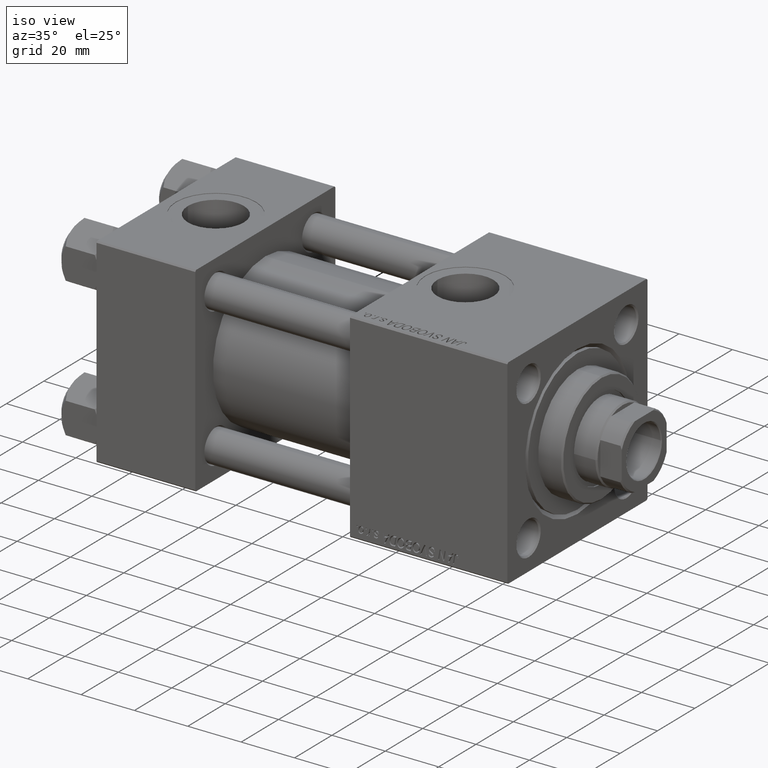
[diagram: clean part render]
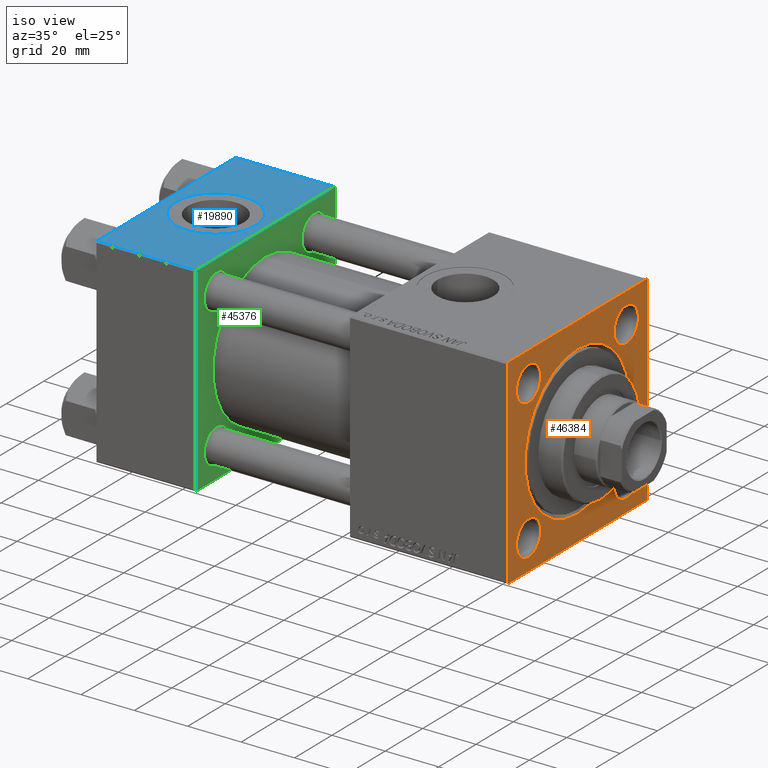
[diagram: same view with three faces highlighted in distinct colors, each labeled with its STEP entity id]
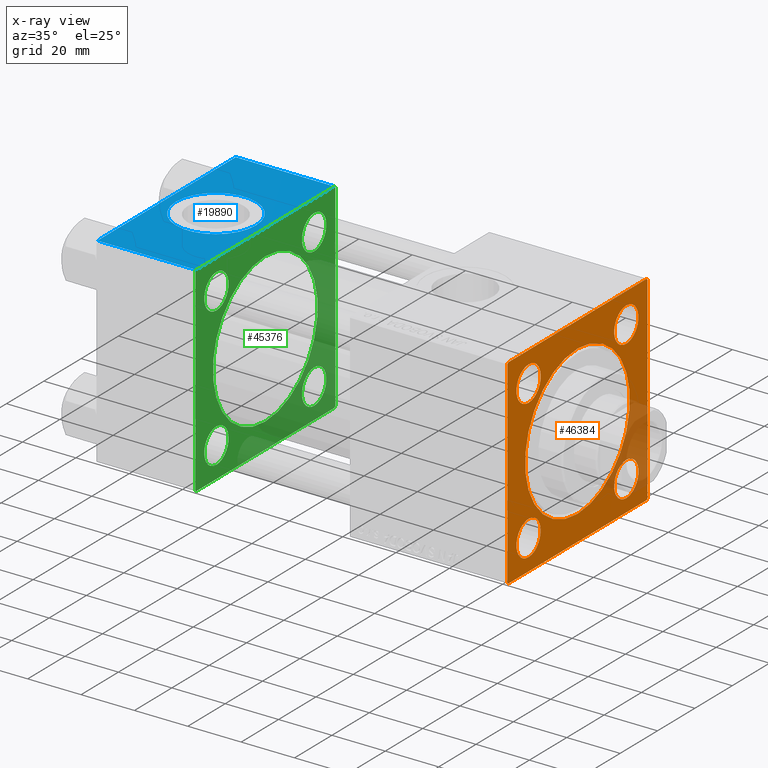
[diagram: x-ray of the same camera — body ghosted, the three highlighted faces saturated]
A machine part, iso view with three faces highlighted in distinct colors.
The next image is the same camera in x-ray (body ghosted, the three faces saturated) — at least one of them is partly hidden behind the body in this view.
Their STEP definitions:

[orange] entity #46384 — the highlighted planar face has unit normal (-1, 0, 0).
#422 = VECTOR ( 'NONE', #26965, 1000.000000000000000 ) ;
#607 = CIRCLE ( 'NONE', #4798, 6.499999999999974243 ) ;
#1008 = EDGE_CURVE ( 'NONE', #11964, #1488, #49375, .T. ) ;
#1358 = CIRCLE ( 'NONE', #18935, 6.499999999999974243 ) ;
#1488 = VERTEX_POINT ( 'NONE', #49674 ) ;
#1731 = VERTEX_POINT ( 'NONE', #40706 ) ;
#1790 = VERTEX_POINT ( 'NONE', #8690 ) ;
#1887 = VECTOR ( 'NONE', #22352, 1000.000000000000000 ) ;
#2855 = DIRECTION ( 'NONE',  ( 0.000000000000000000, 0.000000000000000000, 1.000000000000000000 ) ) ;
#2877 = DIRECTION ( 'NONE',  ( 0.000000000000000000, -1.000000000000000000, 0.000000000000000000 ) ) ;
#3368 = CIRCLE ( 'NONE', #51134, 6.500000000000008882 ) ;
#3686 = DIRECTION ( 'NONE',  ( 0.000000000000000000, -9.251858538542972814E-17, -1.000000000000000000 ) ) ;
#4069 = DIRECTION ( 'NONE',  ( -1.000000000000000000, -0.000000000000000000, 0.000000000000000000 ) ) ;
#4264 = EDGE_CURVE ( 'NONE', #40073, #27345, #3368, .T. ) ;
#4334 = VERTEX_POINT ( 'NONE', #20125 ) ;
#4798 = AXIS2_PLACEMENT_3D ( 'NONE', #35607, #31671, #47677 ) ;
#5221 = FACE_BOUND ( 'NONE', #30953, .T. ) ;
#6506 = DIRECTION ( 'NONE',  ( 0.000000000000000000, 0.000000000000000000, 1.000000000000000000 ) ) ;
#7015 = PLANE ( 'NONE',  #33378 ) ;
#7170 = EDGE_CURVE ( 'NONE', #29975, #20406, #21080, .T. ) ;
#7437 = CARTESIAN_POINT ( 'NONE',  ( 154.0000000000000000, 26.14999999999999858, 19.64999999999999503 ) ) ;
#8323 = ORIENTED_EDGE ( 'NONE', *, *, #43619, .T. ) ;
#8389 = CARTESIAN_POINT ( 'NONE',  ( 154.0000000000000000, -26.14999999999999147, 32.64999999999999858 ) ) ;
#8690 = CARTESIAN_POINT ( 'NONE',  ( 154.0000000000000000, 3.429011037612588881E-15, 27.99999999999999645 ) ) ;
#8776 = EDGE_CURVE ( 'NONE', #20583, #4334, #48767, .T. ) ;
#8794 = CARTESIAN_POINT ( 'NONE',  ( 154.0000000000000000, 37.50000000000000000, -36.99999999999999289 ) ) ;
#9021 = ORIENTED_EDGE ( 'NONE', *, *, #14733, .T. ) ;
#9444 = AXIS2_PLACEMENT_3D ( 'NONE', #23307, #19111, #51144 ) ;
#9551 = CARTESIAN_POINT ( 'NONE',  ( 154.0000000000000000, 37.00000000000000000, 37.49999999999999289 ) ) ;
#9606 = EDGE_CURVE ( 'NONE', #47620, #17521, #46432, .T. ) ;
#10479 = AXIS2_PLACEMENT_3D ( 'NONE', #26944, #46123, #18560 ) ;
#10723 = CARTESIAN_POINT ( 'NONE',  ( 154.0000000000000000, 26.14999999999999858, -32.64999999999998437 ) ) ;
#11964 = VERTEX_POINT ( 'NONE', #49812 ) ;
#13144 = CIRCLE ( 'NONE', #42486, 27.99999999999999645 ) ;
#13164 = CARTESIAN_POINT ( 'NONE',  ( 154.0000000000000000, 37.50000000000000000, 37.49999999999999289 ) ) ;
#13592 = FACE_OUTER_BOUND ( 'NONE', #34326, .T. ) ;
#13735 = DIRECTION ( 'NONE',  ( 0.000000000000000000, -0.7071067811865474617, 0.7071067811865474617 ) ) ;
#14661 = LINE ( 'NONE', #42492, #18941 ) ;
#14733 = EDGE_CURVE ( 'NONE', #47594, #48598, #39819, .T. ) ;
#15165 = DIRECTION ( 'NONE',  ( -0.000000000000000000, -0.7071067811865474617, -0.7071067811865474617 ) ) ;
#15678 = CARTESIAN_POINT ( 'NONE',  ( 154.0000000000000000, 26.14999999999999858, 26.15000000000000213 ) ) ;
#15808 = VERTEX_POINT ( 'NONE', #35254 ) ;
#16004 = EDGE_CURVE ( 'NONE', #1731, #36848, #34796, .T. ) ;
#16234 = DIRECTION ( 'NONE',  ( -1.000000000000000000, -0.000000000000000000, 0.000000000000000000 ) ) ;
#17252 = VECTOR ( 'NONE', #29744, 999.9999999999998863 ) ;
#17521 = VERTEX_POINT ( 'NONE', #27262 ) ;
#17524 = FACE_BOUND ( 'NONE', #28318, .T. ) ;
#17844 = ORIENTED_EDGE ( 'NONE', *, *, #44827, .T. ) ;
#18560 = DIRECTION ( 'NONE',  ( 0.000000000000000000, 0.000000000000000000, 1.000000000000000000 ) ) ;
#18562 = ORIENTED_EDGE ( 'NONE', *, *, #21079, .T. ) ;
#18577 = AXIS2_PLACEMENT_3D ( 'NONE', #49395, #25244, #45969 ) ;
#18773 = EDGE_CURVE ( 'NONE', #20406, #29975, #39808, .T. ) ;
#18935 = AXIS2_PLACEMENT_3D ( 'NONE', #45764, #25043, #41061 ) ;
#18941 = VECTOR ( 'NONE', #15165, 1000.000000000000114 ) ;
#19111 = DIRECTION ( 'NONE',  ( -1.000000000000000000, -0.000000000000000000, 0.000000000000000000 ) ) ;
#19153 = LINE ( 'NONE', #32270, #48460 ) ;
#19924 = ORIENTED_EDGE ( 'NONE', *, *, #21020, .T. ) ;
#20053 = DIRECTION ( 'NONE',  ( 0.000000000000000000, 0.000000000000000000, 1.000000000000000000 ) ) ;
#20125 = CARTESIAN_POINT ( 'NONE',  ( 154.0000000000000000, 26.14999999999999858, -19.65000000000002345 ) ) ;
#20235 = ORIENTED_EDGE ( 'NONE', *, *, #1008, .F. ) ;
#20406 = VERTEX_POINT ( 'NONE', #8389 ) ;
#20583 = VERTEX_POINT ( 'NONE', #10723 ) ;
#20938 = FACE_BOUND ( 'NONE', #48258, .T. ) ;
#21020 = EDGE_CURVE ( 'NONE', #47620, #1488, #29228, .T. ) ;
#21079 = EDGE_CURVE ( 'NONE', #4334, #20583, #1358, .T. ) ;
#21080 = CIRCLE ( 'NONE', #47901, 6.500000000000002665 ) ;
#21208 = FACE_BOUND ( 'NONE', #32248, .T. ) ;
#21214 = CARTESIAN_POINT ( 'NONE',  ( 154.0000000000000000, 0.000000000000000000, 0.000000000000000000 ) ) ;
#21279 = ORIENTED_EDGE ( 'NONE', *, *, #28455, .T. ) ;
#21581 = CARTESIAN_POINT ( 'NONE',  ( 154.0000000000000000, -36.99999999999998579, -37.50000000000000000 ) ) ;
#22323 = DIRECTION ( 'NONE',  ( 0.000000000000000000, 0.000000000000000000, -1.000000000000000000 ) ) ;
#22352 = DIRECTION ( 'NONE',  ( 0.000000000000000000, 0.7071067811865671127, -0.7071067811865279218 ) ) ;
#23307 = CARTESIAN_POINT ( 'NONE',  ( 154.0000000000000000, 26.14999999999999858, -26.15000000000000213 ) ) ;
#24178 = VECTOR ( 'NONE', #13735, 1000.000000000000114 ) ;
#25043 = DIRECTION ( 'NONE',  ( -1.000000000000000000, -0.000000000000000000, 0.000000000000000000 ) ) ;
#25244 = DIRECTION ( 'NONE',  ( -1.000000000000000000, -0.000000000000000000, 0.000000000000000000 ) ) ;
#25802 = CARTESIAN_POINT ( 'NONE',  ( 154.0000000000000000, 37.00000000000000000, -37.50000000000000000 ) ) ;
#26174 = VECTOR ( 'NONE', #2877, 1000.000000000000000 ) ;
#26327 = CIRCLE ( 'NONE', #50621, 27.99999999999999645 ) ;
#26785 = DIRECTION ( 'NONE',  ( 0.000000000000000000, 0.000000000000000000, 1.000000000000000000 ) ) ;
#26944 = CARTESIAN_POINT ( 'NONE',  ( 154.0000000000000000, -26.14999999999999147, 26.14999999999999503 ) ) ;
#26965 = DIRECTION ( 'NONE',  ( 0.000000000000000000, -1.000000000000000000, -1.850371707708594316E-16 ) ) ;
#27262 = CARTESIAN_POINT ( 'NONE',  ( 154.0000000000000000, -36.99999999999998579, -37.50000000000000000 ) ) ;
#27345 = VERTEX_POINT ( 'NONE', #7437 ) ;
#27475 = CARTESIAN_POINT ( 'NONE',  ( 154.0000000000000000, 37.50000000000000000, 37.49999999999999289 ) ) ;
#27505 = EDGE_CURVE ( 'NONE', #27345, #40073, #34498, .T. ) ;
#28318 = EDGE_LOOP ( 'NONE', ( #45175, #18562 ) ) ;
#28455 = EDGE_CURVE ( 'NONE', #35786, #17521, #46235, .T. ) ;
#29228 = LINE ( 'NONE', #8794, #17252 ) ;
#29744 = DIRECTION ( 'NONE',  ( -0.000000000000000000, 0.7071067811865425767, 0.7071067811865525687 ) ) ;
#29975 = VERTEX_POINT ( 'NONE', #30797 ) ;
#30204 = DIRECTION ( 'NONE',  ( -1.000000000000000000, -0.000000000000000000, 0.000000000000000000 ) ) ;
#30412 = CARTESIAN_POINT ( 'NONE',  ( 154.0000000000000000, -36.99999999999997158, 37.49999999999997868 ) ) ;
#30797 = CARTESIAN_POINT ( 'NONE',  ( 154.0000000000000000, -26.14999999999999147, 19.64999999999999503 ) ) ;
#30953 = EDGE_LOOP ( 'NONE', ( #48783, #38066 ) ) ;
#31399 = CARTESIAN_POINT ( 'NONE',  ( 154.0000000000000000, 0.000000000000000000, 0.000000000000000000 ) ) ;
#31671 = DIRECTION ( 'NONE',  ( -1.000000000000000000, -0.000000000000000000, 0.000000000000000000 ) ) ;
#32248 = EDGE_LOOP ( 'NONE', ( #17844, #35920 ) ) ;
#32270 = CARTESIAN_POINT ( 'NONE',  ( 154.0000000000000000, -37.50000000000000000, 37.49999999999997868 ) ) ;
#33050 = EDGE_CURVE ( 'NONE', #1790, #47739, #26327, .T. ) ;
#33378 = AXIS2_PLACEMENT_3D ( 'NONE', #31399, #42458, #6506 ) ;
#33433 = LINE ( 'NONE', #49699, #24178 ) ;
#33655 = CARTESIAN_POINT ( 'NONE',  ( 154.0000000000000000, -26.15000000000000213, -26.15000000000000213 ) ) ;
#34115 = ORIENTED_EDGE ( 'NONE', *, *, #41813, .T. ) ;
#34326 = EDGE_LOOP ( 'NONE', ( #39114, #21279, #43614, #19924, #20235, #47043, #9021, #34115 ) ) ;
#34498 = CIRCLE ( 'NONE', #18577, 6.500000000000008882 ) ;
#34796 = CIRCLE ( 'NONE', #48083, 6.499999999999974243 ) ;
#35254 = CARTESIAN_POINT ( 'NONE',  ( 154.0000000000000000, -37.50000000000000000, 36.99999999999995026 ) ) ;
#35607 = CARTESIAN_POINT ( 'NONE',  ( 154.0000000000000000, -26.15000000000000213, -26.15000000000000213 ) ) ;
#35786 = VERTEX_POINT ( 'NONE', #47516 ) ;
#35920 = ORIENTED_EDGE ( 'NONE', *, *, #16004, .T. ) ;
#36848 = VERTEX_POINT ( 'NONE', #42512 ) ;
#36902 = VECTOR ( 'NONE', #22323, 1000.000000000000000 ) ;
#37077 = DIRECTION ( 'NONE',  ( 0.000000000000000000, 0.000000000000000000, 1.000000000000000000 ) ) ;
#38066 = ORIENTED_EDGE ( 'NONE', *, *, #4264, .T. ) ;
#38356 = CARTESIAN_POINT ( 'NONE',  ( 154.0000000000000000, -26.14999999999999147, 26.14999999999999503 ) ) ;
#39114 = ORIENTED_EDGE ( 'NONE', *, *, #48203, .T. ) ;
#39808 = CIRCLE ( 'NONE', #10479, 6.500000000000002665 ) ;
#39819 = LINE ( 'NONE', #27475, #422 ) ;
#40011 = CARTESIAN_POINT ( 'NONE',  ( 154.0000000000000000, 0.000000000000000000, 0.000000000000000000 ) ) ;
#40073 = VERTEX_POINT ( 'NONE', #43658 ) ;
#40706 = CARTESIAN_POINT ( 'NONE',  ( 154.0000000000000000, -26.15000000000000213, -19.65000000000002345 ) ) ;
#41061 = DIRECTION ( 'NONE',  ( 0.000000000000000000, 0.000000000000000000, 1.000000000000000000 ) ) ;
#41162 = ORIENTED_EDGE ( 'NONE', *, *, #33050, .T. ) ;
#41813 = EDGE_CURVE ( 'NONE', #48598, #15808, #14661, .T. ) ;
#42458 = DIRECTION ( 'NONE',  ( -1.000000000000000000, -0.000000000000000000, 0.000000000000000000 ) ) ;
#42486 = AXIS2_PLACEMENT_3D ( 'NONE', #21214, #16234, #48772 ) ;
#42492 = CARTESIAN_POINT ( 'NONE',  ( 154.0000000000000000, -37.50000000000000000, 36.99999999999995026 ) ) ;
#42512 = CARTESIAN_POINT ( 'NONE',  ( 154.0000000000000000, -26.15000000000000213, -32.64999999999998437 ) ) ;
#43614 = ORIENTED_EDGE ( 'NONE', *, *, #9606, .F. ) ;
#43619 = EDGE_CURVE ( 'NONE', #47739, #1790, #13144, .T. ) ;
#43658 = CARTESIAN_POINT ( 'NONE',  ( 154.0000000000000000, 26.14999999999999858, 32.65000000000001279 ) ) ;
#44054 = ORIENTED_EDGE ( 'NONE', *, *, #7170, .T. ) ;
#44827 = EDGE_CURVE ( 'NONE', #36848, #1731, #607, .T. ) ;
#45175 = ORIENTED_EDGE ( 'NONE', *, *, #8776, .T. ) ;
#45723 = DIRECTION ( 'NONE',  ( -1.000000000000000000, -0.000000000000000000, 0.000000000000000000 ) ) ;
#45764 = CARTESIAN_POINT ( 'NONE',  ( 154.0000000000000000, 26.14999999999999858, -26.15000000000000213 ) ) ;
#45969 = DIRECTION ( 'NONE',  ( 0.000000000000000000, 0.000000000000000000, 1.000000000000000000 ) ) ;
#46123 = DIRECTION ( 'NONE',  ( -1.000000000000000000, -0.000000000000000000, 0.000000000000000000 ) ) ;
#46218 = ORIENTED_EDGE ( 'NONE', *, *, #18773, .T. ) ;
#46235 = LINE ( 'NONE', #21581, #1887 ) ;
#46384 = ADVANCED_FACE ( 'NONE', ( #5221, #20938, #21208, #17524, #49552, #13592 ), #7015, .F. ) ;
#46432 = LINE ( 'NONE', #50898, #26174 ) ;
#46920 = DIRECTION ( 'NONE',  ( -1.000000000000000000, -0.000000000000000000, 0.000000000000000000 ) ) ;
#47043 = ORIENTED_EDGE ( 'NONE', *, *, #47562, .T. ) ;
#47516 = CARTESIAN_POINT ( 'NONE',  ( 154.0000000000000000, -37.50000000000000711, -37.00000000000000711 ) ) ;
#47562 = EDGE_CURVE ( 'NONE', #11964, #47594, #33433, .T. ) ;
#47594 = VERTEX_POINT ( 'NONE', #9551 ) ;
#47620 = VERTEX_POINT ( 'NONE', #25802 ) ;
#47677 = DIRECTION ( 'NONE',  ( 0.000000000000000000, 0.000000000000000000, 1.000000000000000000 ) ) ;
#47739 = VERTEX_POINT ( 'NONE', #49183 ) ;
#47901 = AXIS2_PLACEMENT_3D ( 'NONE', #38356, #30204, #26785 ) ;
#48083 = AXIS2_PLACEMENT_3D ( 'NONE', #33655, #45723, #37077 ) ;
#48203 = EDGE_CURVE ( 'NONE', #15808, #35786, #19153, .T. ) ;
#48258 = EDGE_LOOP ( 'NONE', ( #44054, #46218 ) ) ;
#48460 = VECTOR ( 'NONE', #3686, 1000.000000000000000 ) ;
#48598 = VERTEX_POINT ( 'NONE', #30412 ) ;
#48767 = CIRCLE ( 'NONE', #9444, 6.499999999999974243 ) ;
#48772 = DIRECTION ( 'NONE',  ( 0.000000000000000000, 0.000000000000000000, 1.000000000000000000 ) ) ;
#48783 = ORIENTED_EDGE ( 'NONE', *, *, #27505, .T. ) ;
#49183 = CARTESIAN_POINT ( 'NONE',  ( 154.0000000000000000, 0.000000000000000000, -27.99999999999999645 ) ) ;
#49375 = LINE ( 'NONE', #13164, #36902 ) ;
#49395 = CARTESIAN_POINT ( 'NONE',  ( 154.0000000000000000, 26.14999999999999858, 26.15000000000000213 ) ) ;
#49552 = FACE_BOUND ( 'NONE', #50061, .T. ) ;
#49674 = CARTESIAN_POINT ( 'NONE',  ( 154.0000000000000000, 37.50000000000000000, -36.99999999999999289 ) ) ;
#49699 = CARTESIAN_POINT ( 'NONE',  ( 154.0000000000000000, 37.00000000000000000, 37.49999999999999289 ) ) ;
#49812 = CARTESIAN_POINT ( 'NONE',  ( 154.0000000000000000, 37.50000000000000000, 36.99999999999999289 ) ) ;
#50061 = EDGE_LOOP ( 'NONE', ( #8323, #41162 ) ) ;
#50621 = AXIS2_PLACEMENT_3D ( 'NONE', #40011, #4069, #20053 ) ;
#50898 = CARTESIAN_POINT ( 'NONE',  ( 154.0000000000000000, 37.50000000000000000, -37.50000000000000000 ) ) ;
#51134 = AXIS2_PLACEMENT_3D ( 'NONE', #15678, #46920, #2855 ) ;
#51144 = DIRECTION ( 'NONE',  ( 0.000000000000000000, 0.000000000000000000, 1.000000000000000000 ) ) ;

[blue] entity #19890 — the highlighted planar face has unit normal (0, 0, -1).
#292 = DIRECTION ( 'NONE',  ( 1.000000000000000000, 0.000000000000000000, 0.000000000000000000 ) ) ;
#948 = VECTOR ( 'NONE', #24526, 1000.000000000000000 ) ;
#1399 = DIRECTION ( 'NONE',  ( -1.000000000000000000, 0.000000000000000000, 0.000000000000000000 ) ) ;
#2006 = DIRECTION ( 'NONE',  ( 0.000000000000000000, 9.251858538542971581E-17, -1.000000000000000000 ) ) ;
#2550 = EDGE_CURVE ( 'NONE', #28678, #50866, #39366, .T. ) ;
#3258 = CARTESIAN_POINT ( 'NONE',  ( 0.000000000000000000, 37.49999999999999289, 37.50000000000000000 ) ) ;
#4229 = CARTESIAN_POINT ( 'NONE',  ( 18.50000000000000000, -5.204170427930421283E-15, 37.50000000000000000 ) ) ;
#4466 = CIRCLE ( 'NONE', #31270, 15.00000000000000355 ) ;
#5946 = FACE_OUTER_BOUND ( 'NONE', #27273, .T. ) ;
#6442 = VECTOR ( 'NONE', #19244, 1000.000000000000000 ) ;
#6627 = VERTEX_POINT ( 'NONE', #28202 ) ;
#6655 = EDGE_CURVE ( 'NONE', #19262, #6627, #8020, .T. ) ;
#7632 = DIRECTION ( 'NONE',  ( 0.000000000000000000, -1.000000000000000000, -9.251858538542971581E-17 ) ) ;
#8020 = LINE ( 'NONE', #27422, #948 ) ;
#8744 = CARTESIAN_POINT ( 'NONE',  ( 0.000000000000000000, 36.99999999999999289, 37.50000000000000000 ) ) ;
#9796 = EDGE_LOOP ( 'NONE', ( #44251, #17465 ) ) ;
#11857 = CARTESIAN_POINT ( 'NONE',  ( 0.000000000000000000, -37.00000000000000711, 37.49999999999999289 ) ) ;
#12864 = CARTESIAN_POINT ( 'NONE',  ( 37.00000000000000000, 37.49999999999999289, 37.50000000000000000 ) ) ;
#13996 = CARTESIAN_POINT ( 'NONE',  ( 37.00000000000000000, 36.99999999999999289, 37.50000000000000000 ) ) ;
#14703 = DIRECTION ( 'NONE',  ( 0.000000000000000000, 0.000000000000000000, 1.000000000000000000 ) ) ;
#15323 = ORIENTED_EDGE ( 'NONE', *, *, #35539, .T. ) ;
#17465 = ORIENTED_EDGE ( 'NONE', *, *, #31491, .F. ) ;
#18520 = ORIENTED_EDGE ( 'NONE', *, *, #6655, .T. ) ;
#19244 = DIRECTION ( 'NONE',  ( 0.000000000000000000, -1.000000000000000000, -9.251858538542971581E-17 ) ) ;
#19262 = VERTEX_POINT ( 'NONE', #11857 ) ;
#19890 = ADVANCED_FACE ( 'NONE', ( #38215, #5946 ), #34006, .F. ) ;
#21579 = LINE ( 'NONE', #8744, #45654 ) ;
#22068 = EDGE_CURVE ( 'NONE', #24707, #19262, #23185, .T. ) ;
#22451 = DIRECTION ( 'NONE',  ( 0.000000000000000000, 1.000000000000000000, 9.251858538542971581E-17 ) ) ;
#23185 = LINE ( 'NONE', #3258, #6442 ) ;
#24047 = ORIENTED_EDGE ( 'NONE', *, *, #22068, .T. ) ;
#24526 = DIRECTION ( 'NONE',  ( 1.000000000000000000, 0.000000000000000000, 0.000000000000000000 ) ) ;
#24707 = VERTEX_POINT ( 'NONE', #41720 ) ;
#25434 = ORIENTED_EDGE ( 'NONE', *, *, #30413, .F. ) ;
#27273 = EDGE_LOOP ( 'NONE', ( #24047, #18520, #25434, #15323 ) ) ;
#27422 = CARTESIAN_POINT ( 'NONE',  ( 37.00000000000000000, -37.00000000000000711, 37.49999999999999289 ) ) ;
#28202 = CARTESIAN_POINT ( 'NONE',  ( 37.00000000000000000, -37.00000000000000711, 37.49999999999999289 ) ) ;
#28678 = VERTEX_POINT ( 'NONE', #34097 ) ;
#30413 = EDGE_CURVE ( 'NONE', #50071, #6627, #44622, .T. ) ;
#31270 = AXIS2_PLACEMENT_3D ( 'NONE', #4229, #36225, #292 ) ;
#31491 = EDGE_CURVE ( 'NONE', #50866, #28678, #4466, .T. ) ;
#34006 = PLANE ( 'NONE',  #44042 ) ;
#34097 = CARTESIAN_POINT ( 'NONE',  ( 33.50000000000000000, -5.204170427930421283E-15, 37.50000000000000000 ) ) ;
#35539 = EDGE_CURVE ( 'NONE', #50071, #24707, #21579, .T. ) ;
#36225 = DIRECTION ( 'NONE',  ( 0.000000000000000000, 0.000000000000000000, 1.000000000000000000 ) ) ;
#38215 = FACE_BOUND ( 'NONE', #9796, .T. ) ;
#38578 = CARTESIAN_POINT ( 'NONE',  ( 18.50000000000000000, -5.204170427930421283E-15, 37.50000000000000000 ) ) ;
#38980 = CARTESIAN_POINT ( 'NONE',  ( 37.00000000000000000, 37.49999999999999289, 37.50000000000000000 ) ) ;
#39366 = CIRCLE ( 'NONE', #46928, 15.00000000000000355 ) ;
#39554 = CARTESIAN_POINT ( 'NONE',  ( 3.499999999999997780, -3.367200229209391300E-15, 37.50000000000000000 ) ) ;
#41720 = CARTESIAN_POINT ( 'NONE',  ( 0.000000000000000000, 36.99999999999999289, 37.50000000000000000 ) ) ;
#42784 = DIRECTION ( 'NONE',  ( 1.000000000000000000, 0.000000000000000000, 0.000000000000000000 ) ) ;
#42976 = VECTOR ( 'NONE', #7632, 1000.000000000000000 ) ;
#44042 = AXIS2_PLACEMENT_3D ( 'NONE', #38980, #2006, #22451 ) ;
#44251 = ORIENTED_EDGE ( 'NONE', *, *, #2550, .F. ) ;
#44622 = LINE ( 'NONE', #12864, #42976 ) ;
#45654 = VECTOR ( 'NONE', #1399, 1000.000000000000000 ) ;
#46928 = AXIS2_PLACEMENT_3D ( 'NONE', #38578, #14703, #42784 ) ;
#50071 = VERTEX_POINT ( 'NONE', #13996 ) ;
#50866 = VERTEX_POINT ( 'NONE', #39554 ) ;

[green] entity #45376 — the highlighted planar face has unit normal (-1, 0, 0).
#111 = EDGE_LOOP ( 'NONE', ( #22109, #17908 ) ) ;
#210 = DIRECTION ( 'NONE',  ( 0.000000000000000000, 9.251858538542971581E-17, -1.000000000000000000 ) ) ;
#393 = AXIS2_PLACEMENT_3D ( 'NONE', #29294, #5446, #38226 ) ;
#894 = ORIENTED_EDGE ( 'NONE', *, *, #32408, .T. ) ;
#1493 = ORIENTED_EDGE ( 'NONE', *, *, #42935, .T. ) ;
#1533 = CARTESIAN_POINT ( 'NONE',  ( 37.00000000000000000, 26.14999999999999858, -32.65000000000003411 ) ) ;
#2979 = FACE_BOUND ( 'NONE', #40517, .T. ) ;
#3609 = EDGE_CURVE ( 'NONE', #46371, #50071, #36356, .T. ) ;
#3624 = CARTESIAN_POINT ( 'NONE',  ( 37.00000000000000000, -26.14999999999999147, -26.15000000000000924 ) ) ;
#3823 = ORIENTED_EDGE ( 'NONE', *, *, #28755, .T. ) ;
#4187 = VERTEX_POINT ( 'NONE', #47430 ) ;
#4289 = EDGE_CURVE ( 'NONE', #48834, #28504, #30181, .T. ) ;
#4613 = VECTOR ( 'NONE', #21501, 1000.000000000000114 ) ;
#5251 = CARTESIAN_POINT ( 'NONE',  ( 37.00000000000000000, -37.50000000000000711, 36.99999999999999289 ) ) ;
#5446 = DIRECTION ( 'NONE',  ( -1.000000000000000000, 0.000000000000000000, -0.000000000000000000 ) ) ;
#5796 = ORIENTED_EDGE ( 'NONE', *, *, #4289, .T. ) ;
#6147 = AXIS2_PLACEMENT_3D ( 'NONE', #39003, #6991, #47380 ) ;
#6213 = DIRECTION ( 'NONE',  ( -1.000000000000000000, 0.000000000000000000, -0.000000000000000000 ) ) ;
#6414 = EDGE_CURVE ( 'NONE', #15731, #21222, #17565, .T. ) ;
#6627 = VERTEX_POINT ( 'NONE', #28202 ) ;
#6732 = DIRECTION ( 'NONE',  ( 0.000000000000000000, 0.000000000000000000, 1.000000000000000000 ) ) ;
#6991 = DIRECTION ( 'NONE',  ( -1.000000000000000000, 0.000000000000000000, -0.000000000000000000 ) ) ;
#7632 = DIRECTION ( 'NONE',  ( 0.000000000000000000, -1.000000000000000000, -9.251858538542971581E-17 ) ) ;
#8337 = CARTESIAN_POINT ( 'NONE',  ( 37.00000000000000000, -37.50000000000000711, 37.49999999999999289 ) ) ;
#9175 = CARTESIAN_POINT ( 'NONE',  ( 37.00000000000000000, -26.14999999999999147, 26.15000000000000924 ) ) ;
#9990 = EDGE_CURVE ( 'NONE', #4187, #35999, #18677, .T. ) ;
#10223 = DIRECTION ( 'NONE',  ( -1.000000000000000000, 0.000000000000000000, -0.000000000000000000 ) ) ;
#10354 = CARTESIAN_POINT ( 'NONE',  ( 37.00000000000000000, 36.99999999999997868, -37.50000000000000000 ) ) ;
#10463 = CIRCLE ( 'NONE', #393, 6.500000000000030198 ) ;
#11429 = CARTESIAN_POINT ( 'NONE',  ( 37.00000000000000000, -37.00000000000002132, -37.50000000000000711 ) ) ;
#11814 = DIRECTION ( 'NONE',  ( 0.000000000000000000, 0.000000000000000000, 1.000000000000000000 ) ) ;
#11906 = ORIENTED_EDGE ( 'NONE', *, *, #9990, .T. ) ;
#12002 = DIRECTION ( 'NONE',  ( -1.000000000000000000, 0.000000000000000000, -0.000000000000000000 ) ) ;
#12015 = AXIS2_PLACEMENT_3D ( 'NONE', #25221, #28897, #16311 ) ;
#12558 = CARTESIAN_POINT ( 'NONE',  ( 37.00000000000000000, -37.50000000000000711, 36.99999999999999289 ) ) ;
#12864 = CARTESIAN_POINT ( 'NONE',  ( 37.00000000000000000, 37.49999999999999289, 37.50000000000000000 ) ) ;
#13720 = EDGE_CURVE ( 'NONE', #15731, #20866, #37437, .T. ) ;
#13996 = CARTESIAN_POINT ( 'NONE',  ( 37.00000000000000000, 36.99999999999999289, 37.50000000000000000 ) ) ;
#14073 = CARTESIAN_POINT ( 'NONE',  ( 37.00000000000000000, 8.269258236473776482E-16, -28.00000000000000000 ) ) ;
#14362 = CARTESIAN_POINT ( 'NONE',  ( 37.00000000000000000, -26.14999999999999147, -19.65000000000000924 ) ) ;
#14410 = DIRECTION ( 'NONE',  ( -1.000000000000000000, 0.000000000000000000, -0.000000000000000000 ) ) ;
#14936 = EDGE_LOOP ( 'NONE', ( #28703, #11906 ) ) ;
#15025 = FACE_BOUND ( 'NONE', #111, .T. ) ;
#15049 = DIRECTION ( 'NONE',  ( 1.000000000000000000, -0.000000000000000000, 0.000000000000000000 ) ) ;
#15451 = VECTOR ( 'NONE', #45049, 1000.000000000000000 ) ;
#15731 = VERTEX_POINT ( 'NONE', #10354 ) ;
#15748 = CARTESIAN_POINT ( 'NONE',  ( 37.00000000000000000, -2.602085213965210642E-15, 0.000000000000000000 ) ) ;
#15864 = VERTEX_POINT ( 'NONE', #31838 ) ;
#16019 = VECTOR ( 'NONE', #17053, 1000.000000000000114 ) ;
#16103 = CIRCLE ( 'NONE', #25319, 6.500000000000030198 ) ;
#16311 = DIRECTION ( 'NONE',  ( 0.000000000000000000, 0.000000000000000000, 1.000000000000000000 ) ) ;
#16381 = EDGE_LOOP ( 'NONE', ( #32580, #34467, #16896, #45055, #19014, #28424, #28168, #40991 ) ) ;
#16838 = LINE ( 'NONE', #24183, #23203 ) ;
#16896 = ORIENTED_EDGE ( 'NONE', *, *, #44555, .F. ) ;
#17053 = DIRECTION ( 'NONE',  ( -0.000000000000000000, 0.7071067811865474617, 0.7071067811865474617 ) ) ;
#17190 = CIRCLE ( 'NONE', #50694, 28.00000000000000000 ) ;
#17481 = CARTESIAN_POINT ( 'NONE',  ( 37.00000000000000000, 37.49999999999999289, -37.50000000000000000 ) ) ;
#17565 = LINE ( 'NONE', #21511, #16019 ) ;
#17826 = CARTESIAN_POINT ( 'NONE',  ( 37.00000000000000000, 26.14999999999999858, 19.64999999999997016 ) ) ;
#17828 = DIRECTION ( 'NONE',  ( 0.000000000000000000, 0.000000000000000000, 1.000000000000000000 ) ) ;
#17908 = ORIENTED_EDGE ( 'NONE', *, *, #34547, .F. ) ;
#18115 = CIRCLE ( 'NONE', #30664, 6.500000000000030198 ) ;
#18677 = CIRCLE ( 'NONE', #6147, 6.500000000000030198 ) ;
#18728 = CARTESIAN_POINT ( 'NONE',  ( 37.00000000000000000, -2.602085213965210642E-15, 0.000000000000000000 ) ) ;
#18929 = CARTESIAN_POINT ( 'NONE',  ( 37.00000000000000000, -26.14999999999999147, -32.65000000000001279 ) ) ;
#19014 = ORIENTED_EDGE ( 'NONE', *, *, #30413, .T. ) ;
#19040 = CARTESIAN_POINT ( 'NONE',  ( 37.00000000000000000, 26.14999999999999858, 26.15000000000000213 ) ) ;
#19214 = CARTESIAN_POINT ( 'NONE',  ( 37.00000000000000000, 0.000000000000000000, 0.000000000000000000 ) ) ;
#19353 = VECTOR ( 'NONE', #29389, 1000.000000000000000 ) ;
#20475 = CIRCLE ( 'NONE', #24667, 28.00000000000000000 ) ;
#20818 = VERTEX_POINT ( 'NONE', #14073 ) ;
#20866 = VERTEX_POINT ( 'NONE', #11429 ) ;
#20967 = DIRECTION ( 'NONE',  ( -1.000000000000000000, 0.000000000000000000, -0.000000000000000000 ) ) ;
#20981 = CARTESIAN_POINT ( 'NONE',  ( 37.00000000000000000, -2.602085213965210642E-15, 28.00000000000000000 ) ) ;
#21222 = VERTEX_POINT ( 'NONE', #33139 ) ;
#21501 = DIRECTION ( 'NONE',  ( -0.000000000000000000, -0.7071067811865474617, -0.7071067811865474617 ) ) ;
#21511 = CARTESIAN_POINT ( 'NONE',  ( 37.00000000000000000, 37.49999999999999289, -36.99999999999998579 ) ) ;
#22109 = ORIENTED_EDGE ( 'NONE', *, *, #35246, .F. ) ;
#22941 = VERTEX_POINT ( 'NONE', #12558 ) ;
#22985 = AXIS2_PLACEMENT_3D ( 'NONE', #9175, #20967, #28836 ) ;
#23159 = FACE_BOUND ( 'NONE', #49677, .T. ) ;
#23203 = VECTOR ( 'NONE', #32323, 1000.000000000000000 ) ;
#23504 = DIRECTION ( 'NONE',  ( 0.000000000000000000, -0.7071067811865474617, 0.7071067811865474617 ) ) ;
#24183 = CARTESIAN_POINT ( 'NONE',  ( 37.00000000000000000, 37.49999999999999289, 37.50000000000000000 ) ) ;
#24667 = AXIS2_PLACEMENT_3D ( 'NONE', #15748, #47760, #11814 ) ;
#24908 = LINE ( 'NONE', #5251, #4613 ) ;
#25221 = CARTESIAN_POINT ( 'NONE',  ( 37.00000000000000000, -26.14999999999999147, -26.15000000000000924 ) ) ;
#25319 = AXIS2_PLACEMENT_3D ( 'NONE', #37278, #10223, #17828 ) ;
#26210 = EDGE_CURVE ( 'NONE', #49632, #20866, #50394, .T. ) ;
#26761 = EDGE_LOOP ( 'NONE', ( #45274, #3823 ) ) ;
#28168 = ORIENTED_EDGE ( 'NONE', *, *, #41949, .T. ) ;
#28202 = CARTESIAN_POINT ( 'NONE',  ( 37.00000000000000000, -37.00000000000000711, 37.49999999999999289 ) ) ;
#28424 = ORIENTED_EDGE ( 'NONE', *, *, #34640, .T. ) ;
#28504 = VERTEX_POINT ( 'NONE', #18929 ) ;
#28703 = ORIENTED_EDGE ( 'NONE', *, *, #42115, .T. ) ;
#28755 = EDGE_CURVE ( 'NONE', #51809, #45735, #16103, .T. ) ;
#28836 = DIRECTION ( 'NONE',  ( 0.000000000000000000, 0.000000000000000000, 1.000000000000000000 ) ) ;
#28897 = DIRECTION ( 'NONE',  ( -1.000000000000000000, 0.000000000000000000, -0.000000000000000000 ) ) ;
#29013 = VECTOR ( 'NONE', #210, 1000.000000000000000 ) ;
#29294 = CARTESIAN_POINT ( 'NONE',  ( 37.00000000000000000, 26.14999999999999858, -26.15000000000000213 ) ) ;
#29389 = DIRECTION ( 'NONE',  ( 0.000000000000000000, 0.7071067811865524577, -0.7071067811865426878 ) ) ;
#29621 = DIRECTION ( 'NONE',  ( 0.000000000000000000, 0.000000000000000000, 1.000000000000000000 ) ) ;
#29644 = CARTESIAN_POINT ( 'NONE',  ( 37.00000000000000000, -37.00000000000002132, -37.50000000000000711 ) ) ;
#30181 = CIRCLE ( 'NONE', #42793, 6.500000000000002665 ) ;
#30413 = EDGE_CURVE ( 'NONE', #50071, #6627, #44622, .T. ) ;
#30664 = AXIS2_PLACEMENT_3D ( 'NONE', #19040, #6213, #6732 ) ;
#31028 = PLANE ( 'NONE',  #39994 ) ;
#31684 = DIRECTION ( 'NONE',  ( 0.000000000000000000, 0.000000000000000000, 1.000000000000000000 ) ) ;
#31838 = CARTESIAN_POINT ( 'NONE',  ( 37.00000000000000000, -26.14999999999999147, 19.65000000000000213 ) ) ;
#32323 = DIRECTION ( 'NONE',  ( 0.000000000000000000, 0.000000000000000000, -1.000000000000000000 ) ) ;
#32408 = EDGE_CURVE ( 'NONE', #28504, #48834, #34653, .T. ) ;
#32580 = ORIENTED_EDGE ( 'NONE', *, *, #13720, .F. ) ;
#33139 = CARTESIAN_POINT ( 'NONE',  ( 37.00000000000000000, 37.49999999999999289, -36.99999999999998579 ) ) ;
#33225 = AXIS2_PLACEMENT_3D ( 'NONE', #41464, #14410, #29621 ) ;
#33661 = EDGE_CURVE ( 'NONE', #15864, #35673, #37202, .T. ) ;
#34112 = EDGE_CURVE ( 'NONE', #45735, #51809, #10463, .T. ) ;
#34467 = ORIENTED_EDGE ( 'NONE', *, *, #6414, .T. ) ;
#34483 = DIRECTION ( 'NONE',  ( 0.000000000000000000, 0.000000000000000000, 1.000000000000000000 ) ) ;
#34547 = EDGE_CURVE ( 'NONE', #20818, #37503, #20475, .T. ) ;
#34640 = EDGE_CURVE ( 'NONE', #6627, #22941, #24908, .T. ) ;
#34653 = CIRCLE ( 'NONE', #12015, 6.500000000000002665 ) ;
#34977 = FACE_BOUND ( 'NONE', #26761, .T. ) ;
#35223 = DIRECTION ( 'NONE',  ( -1.000000000000000000, 0.000000000000000000, -0.000000000000000000 ) ) ;
#35246 = EDGE_CURVE ( 'NONE', #37503, #20818, #17190, .T. ) ;
#35673 = VERTEX_POINT ( 'NONE', #46745 ) ;
#35999 = VERTEX_POINT ( 'NONE', #17826 ) ;
#36356 = LINE ( 'NONE', #48684, #49493 ) ;
#36594 = CIRCLE ( 'NONE', #33225, 6.500000000000008882 ) ;
#37202 = CIRCLE ( 'NONE', #22985, 6.500000000000008882 ) ;
#37278 = CARTESIAN_POINT ( 'NONE',  ( 37.00000000000000000, 26.14999999999999858, -26.15000000000000213 ) ) ;
#37437 = LINE ( 'NONE', #17481, #15451 ) ;
#37503 = VERTEX_POINT ( 'NONE', #20981 ) ;
#38226 = DIRECTION ( 'NONE',  ( 0.000000000000000000, 0.000000000000000000, 1.000000000000000000 ) ) ;
#38584 = CARTESIAN_POINT ( 'NONE',  ( 37.00000000000000000, 26.14999999999999858, -19.64999999999997371 ) ) ;
#39003 = CARTESIAN_POINT ( 'NONE',  ( 37.00000000000000000, 26.14999999999999858, 26.15000000000000213 ) ) ;
#39175 = FACE_OUTER_BOUND ( 'NONE', #16381, .T. ) ;
#39827 = LINE ( 'NONE', #8337, #29013 ) ;
#39994 = AXIS2_PLACEMENT_3D ( 'NONE', #19214, #35223, #51244 ) ;
#40517 = EDGE_LOOP ( 'NONE', ( #894, #5796 ) ) ;
#40713 = ORIENTED_EDGE ( 'NONE', *, *, #33661, .T. ) ;
#40991 = ORIENTED_EDGE ( 'NONE', *, *, #26210, .T. ) ;
#41464 = CARTESIAN_POINT ( 'NONE',  ( 37.00000000000000000, -26.14999999999999147, 26.15000000000000924 ) ) ;
#41949 = EDGE_CURVE ( 'NONE', #22941, #49632, #39827, .T. ) ;
#42002 = CARTESIAN_POINT ( 'NONE',  ( 37.00000000000000000, -37.50000000000000000, -37.00000000000003553 ) ) ;
#42115 = EDGE_CURVE ( 'NONE', #35999, #4187, #18115, .T. ) ;
#42793 = AXIS2_PLACEMENT_3D ( 'NONE', #3624, #12002, #31684 ) ;
#42935 = EDGE_CURVE ( 'NONE', #35673, #15864, #36594, .T. ) ;
#42976 = VECTOR ( 'NONE', #7632, 1000.000000000000000 ) ;
#44555 = EDGE_CURVE ( 'NONE', #46371, #21222, #16838, .T. ) ;
#44622 = LINE ( 'NONE', #12864, #42976 ) ;
#45049 = DIRECTION ( 'NONE',  ( 0.000000000000000000, -1.000000000000000000, -9.251858538542972814E-17 ) ) ;
#45055 = ORIENTED_EDGE ( 'NONE', *, *, #3609, .T. ) ;
#45274 = ORIENTED_EDGE ( 'NONE', *, *, #34112, .T. ) ;
#45376 = ADVANCED_FACE ( 'NONE', ( #2979, #34977, #23159, #50992, #15025, #39175 ), #31028, .F. ) ;
#45735 = VERTEX_POINT ( 'NONE', #1533 ) ;
#46120 = CARTESIAN_POINT ( 'NONE',  ( 37.00000000000000000, 37.49999999999999289, 37.00000000000000000 ) ) ;
#46371 = VERTEX_POINT ( 'NONE', #46120 ) ;
#46745 = CARTESIAN_POINT ( 'NONE',  ( 37.00000000000000000, -26.14999999999999147, 32.65000000000001990 ) ) ;
#47380 = DIRECTION ( 'NONE',  ( 0.000000000000000000, 0.000000000000000000, 1.000000000000000000 ) ) ;
#47430 = CARTESIAN_POINT ( 'NONE',  ( 37.00000000000000000, 26.14999999999999858, 32.65000000000004121 ) ) ;
#47760 = DIRECTION ( 'NONE',  ( 1.000000000000000000, -0.000000000000000000, 0.000000000000000000 ) ) ;
#48684 = CARTESIAN_POINT ( 'NONE',  ( 37.00000000000000000, 36.99999999999999289, 37.50000000000000000 ) ) ;
#48834 = VERTEX_POINT ( 'NONE', #14362 ) ;
#49493 = VECTOR ( 'NONE', #23504, 1000.000000000000114 ) ;
#49632 = VERTEX_POINT ( 'NONE', #42002 ) ;
#49677 = EDGE_LOOP ( 'NONE', ( #40713, #1493 ) ) ;
#50071 = VERTEX_POINT ( 'NONE', #13996 ) ;
#50394 = LINE ( 'NONE', #29644, #19353 ) ;
#50694 = AXIS2_PLACEMENT_3D ( 'NONE', #18728, #15049, #34483 ) ;
#50992 = FACE_BOUND ( 'NONE', #14936, .T. ) ;
#51244 = DIRECTION ( 'NONE',  ( -0.000000000000000000, 0.000000000000000000, 1.000000000000000000 ) ) ;
#51809 = VERTEX_POINT ( 'NONE', #38584 ) ;